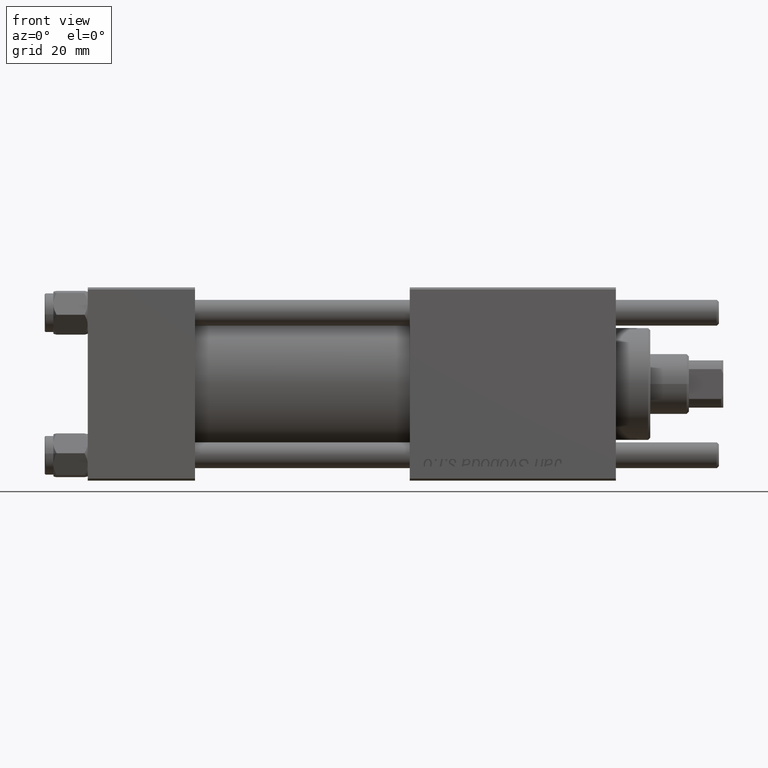
[diagram: clean part render]
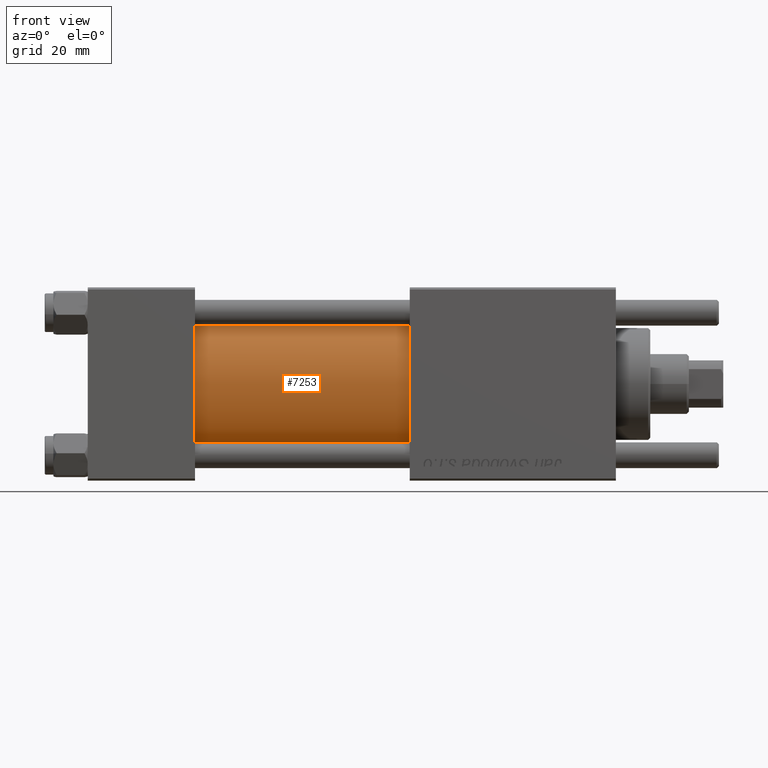
[diagram: same view with one face highlighted and labeled with its STEP entity id]
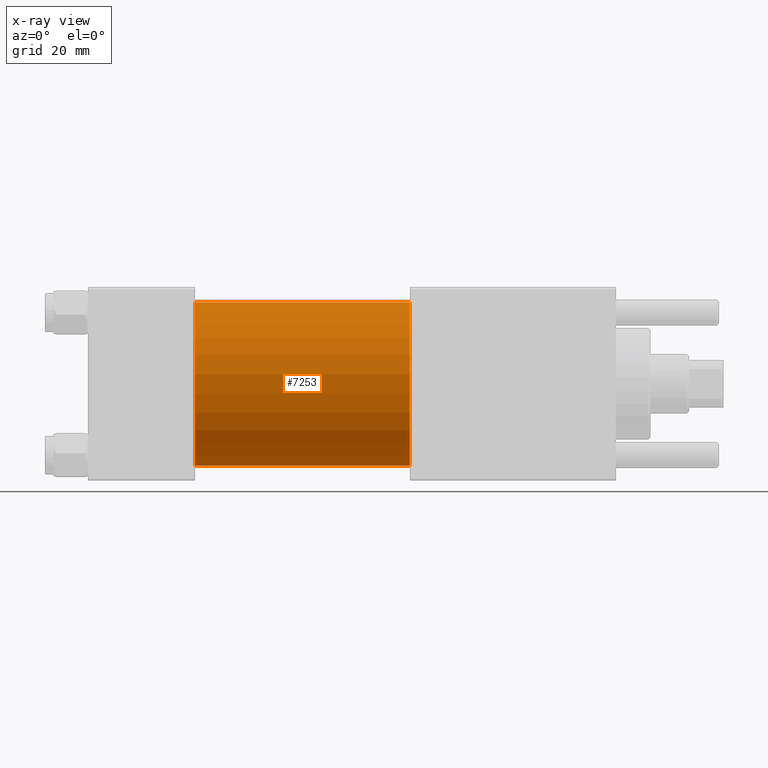
[diagram: x-ray of the same camera — body ghosted, the highlighted face saturated]
A machine part, front view. The second image highlights one B-rep face of the part: STEP entity #7253.
The next image is the same camera in x-ray: the body ghosted, the highlighted face saturated — about 0% of this face is hidden behind the body in this view.
In plain terms, the highlighted cylindrical surface (partial cylindrical patch) has radius 19 mm, axis along (-1, -0, -0).
Its self-contained STEP definition (entity closure, byte-faithful):
#1548 = DIRECTION ( 'NONE',  ( 0.000000000000000000, 0.000000000000000000, 1.000000000000000000 ) ) ;
#2188 = CIRCLE ( 'NONE', #13221, 19.00000000000000000 ) ;
#2313 = DIRECTION ( 'NONE',  ( -1.000000000000000000, -0.000000000000000000, -0.000000000000000000 ) ) ;
#4871 = ORIENTED_EDGE ( 'NONE', *, *, #22355, .F. ) ;
#5356 = CARTESIAN_POINT ( 'NONE',  ( 75.00000000000001421, -2.602085213965210642E-15, 19.00000000000000000 ) ) ;
#7253 = ADVANCED_FACE ( 'NONE', ( #49343 ), #22837, .T. ) ;
#11495 = VERTEX_POINT ( 'NONE', #5356 ) ;
#11776 = DIRECTION ( 'NONE',  ( -1.000000000000000000, -0.000000000000000000, -0.000000000000000000 ) ) ;
#13221 = AXIS2_PLACEMENT_3D ( 'NONE', #49960, #28905, #29179 ) ;
#13592 = VERTEX_POINT ( 'NONE', #32323 ) ;
#14295 = VECTOR ( 'NONE', #11776, 1000.000000000000000 ) ;
#19429 = CARTESIAN_POINT ( 'NONE',  ( 25.00000000000000000, -2.602085213965210642E-15, 0.000000000000000000 ) ) ;
#22355 = EDGE_CURVE ( 'NONE', #11495, #43795, #2188, .T. ) ;
#22837 = CYLINDRICAL_SURFACE ( 'NONE', #33141, 19.00000000000000000 ) ;
#22903 = ORIENTED_EDGE ( 'NONE', *, *, #50372, .T. ) ;
#27728 = DIRECTION ( 'NONE',  ( -1.000000000000000000, -0.000000000000000000, -0.000000000000000000 ) ) ;
#28197 = EDGE_CURVE ( 'NONE', #43795, #31543, #33428, .T. ) ;
#28905 = DIRECTION ( 'NONE',  ( 1.000000000000000000, 0.000000000000000000, 0.000000000000000000 ) ) ;
#29103 = CIRCLE ( 'NONE', #54861, 19.00000000000000000 ) ;
#29179 = DIRECTION ( 'NONE',  ( 0.000000000000000000, 0.000000000000000000, -1.000000000000000000 ) ) ;
#31543 = VERTEX_POINT ( 'NONE', #51343 ) ;
#32323 = CARTESIAN_POINT ( 'NONE',  ( 25.00000000000000000, -2.602085213965210642E-15, 19.00000000000000000 ) ) ;
#33141 = AXIS2_PLACEMENT_3D ( 'NONE', #45031, #27728, #35812 ) ;
#33244 = EDGE_CURVE ( 'NONE', #11495, #13592, #55566, .T. ) ;
#33428 = LINE ( 'NONE', #55601, #51916 ) ;
#33674 = CARTESIAN_POINT ( 'NONE',  ( 75.00000000000001421, -2.602085213965210642E-15, 19.00000000000000000 ) ) ;
#35812 = DIRECTION ( 'NONE',  ( 0.000000000000000000, 0.000000000000000000, 1.000000000000000000 ) ) ;
#36156 = CARTESIAN_POINT ( 'NONE',  ( 75.00000000000001421, -2.752562955852396712E-16, -19.00000000000000000 ) ) ;
#38043 = EDGE_LOOP ( 'NONE', ( #41215, #4871, #56671, #22903 ) ) ;
#41048 = DIRECTION ( 'NONE',  ( 1.000000000000000000, -0.000000000000000000, 0.000000000000000000 ) ) ;
#41215 = ORIENTED_EDGE ( 'NONE', *, *, #28197, .F. ) ;
#43795 = VERTEX_POINT ( 'NONE', #36156 ) ;
#45031 = CARTESIAN_POINT ( 'NONE',  ( 75.00000000000001421, -2.602085213965210642E-15, 0.000000000000000000 ) ) ;
#49343 = FACE_OUTER_BOUND ( 'NONE', #38043, .T. ) ;
#49960 = CARTESIAN_POINT ( 'NONE',  ( 75.00000000000001421, -2.602085213965210642E-15, 0.000000000000000000 ) ) ;
#50372 = EDGE_CURVE ( 'NONE', #13592, #31543, #29103, .T. ) ;
#51343 = CARTESIAN_POINT ( 'NONE',  ( 25.00000000000000000, -2.752562955852396712E-16, -19.00000000000000000 ) ) ;
#51916 = VECTOR ( 'NONE', #2313, 1000.000000000000000 ) ;
#54861 = AXIS2_PLACEMENT_3D ( 'NONE', #19429, #41048, #1548 ) ;
#55566 = LINE ( 'NONE', #33674, #14295 ) ;
#55601 = CARTESIAN_POINT ( 'NONE',  ( 75.00000000000001421, -2.752562955852396712E-16, -19.00000000000000000 ) ) ;
#56671 = ORIENTED_EDGE ( 'NONE', *, *, #33244, .T. ) ;